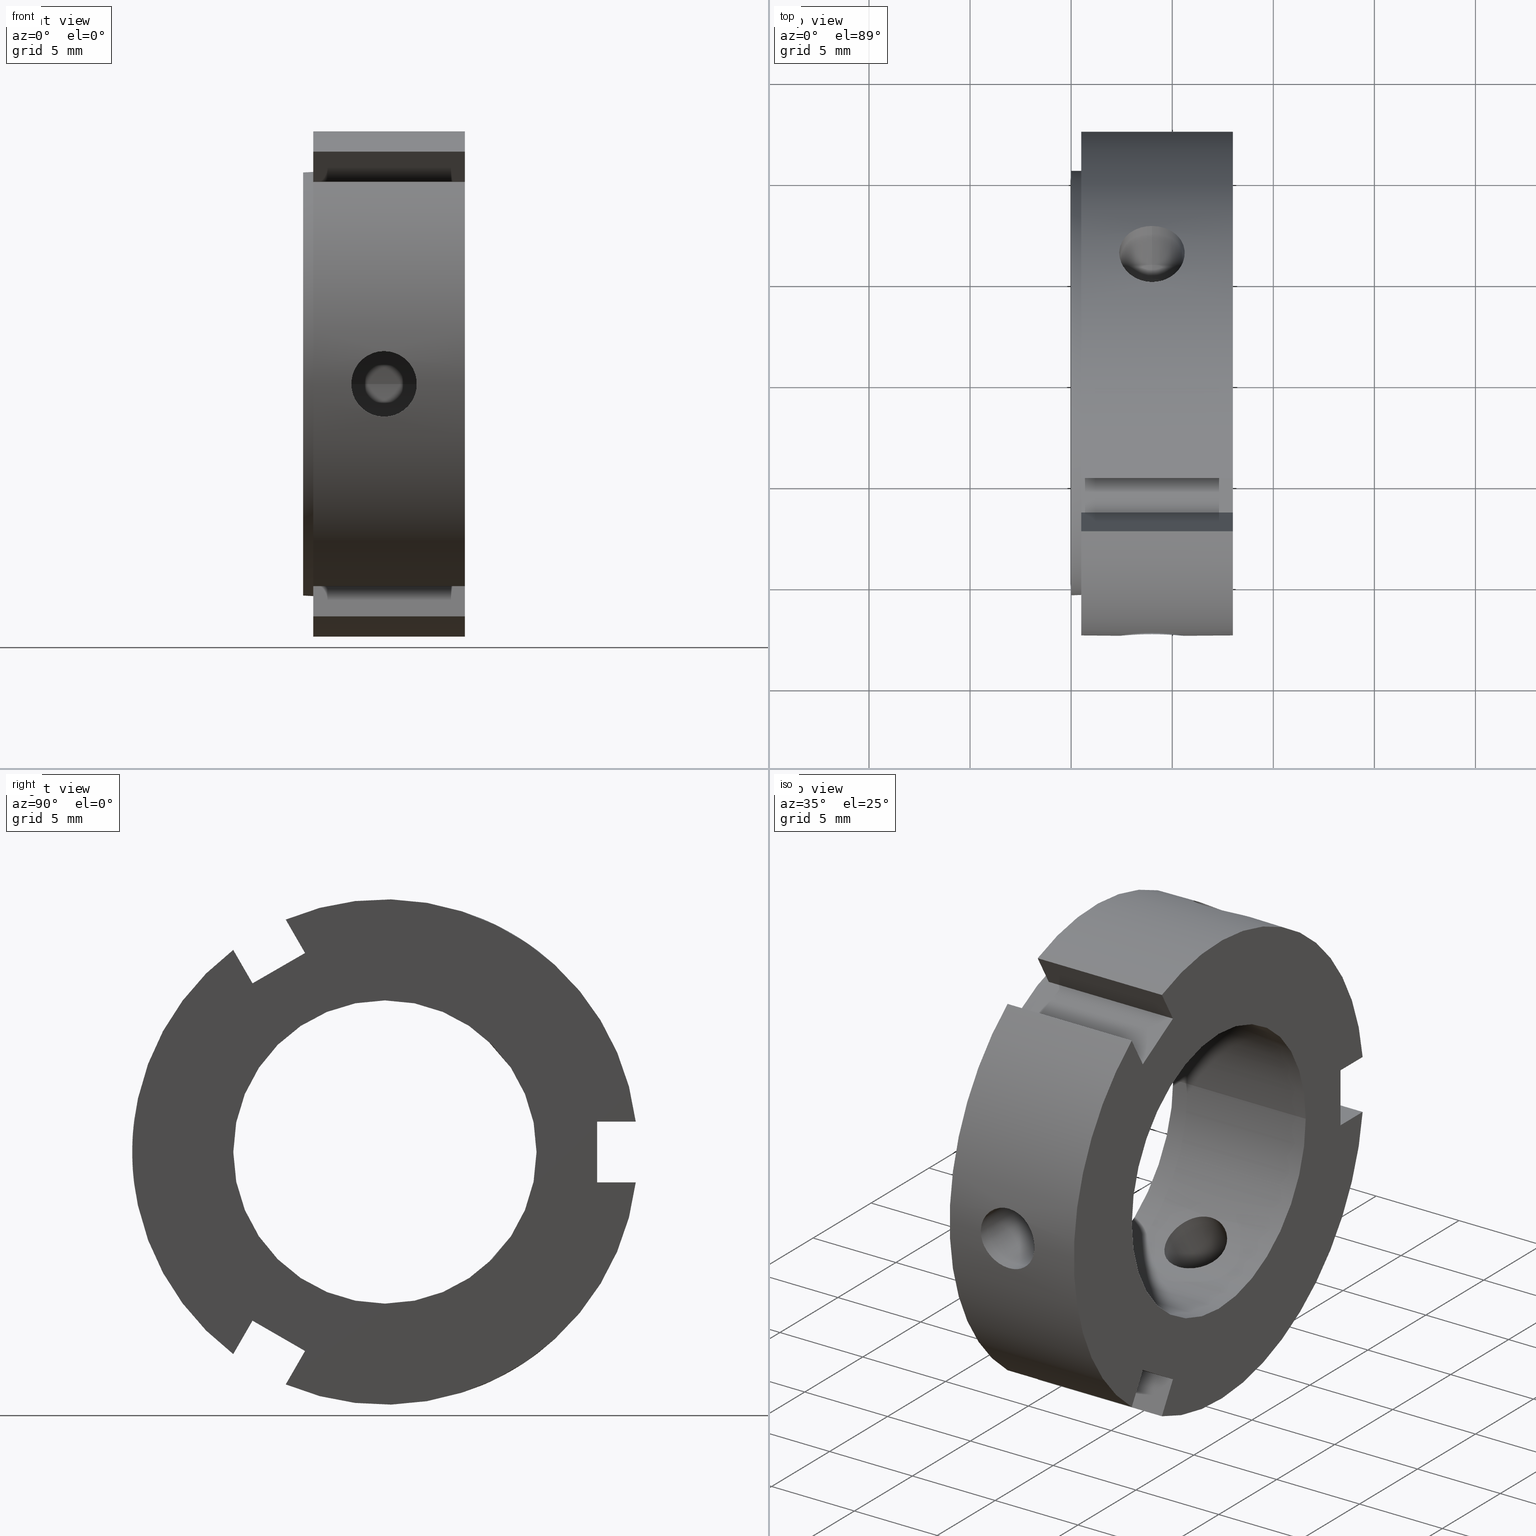
[diagram: canonical four-view strip — front | top / right | iso, engineering-drawing reading convention]
A machine part, canonical four-view strip (front | top / right | iso — engineering-drawing reading convention). The complete STEP part file that produces these views, byte-faithful:
ISO-10303-21;
HEADER;
/****************************************************************
 * Generated by software with PDE/Lib inside                    *
 * PDElib Version v51a, created Thu 01/14/2010                  *
 * ITI Transcendata (http://www.transcendata.com/)              *
 ****************************************************************/
FILE_DESCRIPTION((''),'2;1');
FILE_NAME('\\\\CAD-SVN\\cad-svn\\\X2\628088538AB2\X0\\\FKD\X2\88FD4F5C\X0\SP\\\X2\90E854C130E930A430D630E930EA\X0\\\HP \X2\30A230C330D730C730FC30C87528\X0\CAD\X2\30C730FC30BFFF0867007D42FF09\X0\\\3D data\\ZMT\\FKD ZMT 15.stp','2014-07-16T14:43:16',('fkd-ct1n'),(''),'Autodesk Inventor 2011','Autodesk Inventor 2011','');
FILE_SCHEMA(('AUTOMOTIVE_DESIGN { 1 0 10303 214 1 1 1 1 }'));
ENDSEC;
DATA;
#5=APPLICATION_CONTEXT('automotive design');
#6=APPLICATION_PROTOCOL_DEFINITION('International Standard','automotive_design',2001,#5);
#7=PRODUCT_CONTEXT('',#5,'mechanical');
#8=PRODUCT('FKD ZMT 15','FKD ZMT 15',$,(#7));
#9=PRODUCT_RELATED_PRODUCT_CATEGORY('part',$,(#8));
#10=PRODUCT_DEFINITION_FORMATION('',$,#8);
#11=PRODUCT_DEFINITION_CONTEXT('part definition',#5,'design');
#12=PRODUCT_DEFINITION('',$,#10,#11);
#18=(NAMED_UNIT(*)PLANE_ANGLE_UNIT()SI_UNIT($,.RADIAN.));
#19=DIMENSIONAL_EXPONENTS(0.0,0.0,0.0,0.0,0.0,0.0,0.0);
#20=PLANE_ANGLE_MEASURE_WITH_UNIT(PLANE_ANGLE_MEASURE(0.017453292500000),#18);
#24=(CONVERSION_BASED_UNIT('DEGREE',#20)NAMED_UNIT(#19)PLANE_ANGLE_UNIT());
#28=(NAMED_UNIT(*)SI_UNIT($,.STERADIAN.)SOLID_ANGLE_UNIT());
#32=(LENGTH_UNIT()NAMED_UNIT(*)SI_UNIT(.MILLI.,.METRE.));
#34=UNCERTAINTY_MEASURE_WITH_UNIT(LENGTH_MEASURE(0.010000000000000),#32,'DISTANCE_ACCURACY_VALUE','');
#36=(GEOMETRIC_REPRESENTATION_CONTEXT(3)GLOBAL_UNCERTAINTY_ASSIGNED_CONTEXT((#34))GLOBAL_UNIT_ASSIGNED_CONTEXT((#24,#28,#32))REPRESENTATION_CONTEXT('None','None'));
#37=AXIS2_PLACEMENT_3D('',#38,#39,#40);
#38=CARTESIAN_POINT('',(0.0,0.0,0.0));
#39=DIRECTION('',(0.0,0.0,1.0));
#40=DIRECTION('',(1.0,0.0,0.0));
#41=SHAPE_REPRESENTATION('',(#37),#36);
#42=PRODUCT_DEFINITION_SHAPE('','',#12);
#43=SHAPE_DEFINITION_REPRESENTATION(#42,#41);
#49=(NAMED_UNIT(*)PLANE_ANGLE_UNIT()SI_UNIT($,.RADIAN.));
#50=DIMENSIONAL_EXPONENTS(0.0,0.0,0.0,0.0,0.0,0.0,0.0);
#51=PLANE_ANGLE_MEASURE_WITH_UNIT(PLANE_ANGLE_MEASURE(0.017453292500000),#49);
#55=(CONVERSION_BASED_UNIT('DEGREE',#51)NAMED_UNIT(#50)PLANE_ANGLE_UNIT());
#59=(NAMED_UNIT(*)SI_UNIT($,.STERADIAN.)SOLID_ANGLE_UNIT());
#63=(LENGTH_UNIT()NAMED_UNIT(*)SI_UNIT(.MILLI.,.METRE.));
#65=UNCERTAINTY_MEASURE_WITH_UNIT(LENGTH_MEASURE(0.000001000000000),#63,'DISTANCE_ACCURACY_VALUE','');
#67=(GEOMETRIC_REPRESENTATION_CONTEXT(3)GLOBAL_UNCERTAINTY_ASSIGNED_CONTEXT((#65))GLOBAL_UNIT_ASSIGNED_CONTEXT((#55,#59,#63))REPRESENTATION_CONTEXT('','3D'));
#68=CARTESIAN_POINT('',(7.999999999999996,-6.549038105676662,-8.343266739736601));
#69=DIRECTION('',(0.0,-0.866025403784438,0.500000000000000));
#70=DIRECTION('',(-1.0,0.0,0.0));
#71=AXIS2_PLACEMENT_3D('',#68,#69,#70);
#72=PLANE('',#71);
#73=CARTESIAN_POINT('',(0.499999999999998,-6.549038105676662,-8.343266739736601));
#74=VERTEX_POINT('',#73);
#75=CARTESIAN_POINT('',(0.499999999999998,-7.503874928672091,-9.997092630102335));
#76=VERTEX_POINT('',#75);
#77=CARTESIAN_POINT('',(0.499999999999998,-6.549038105676662,-8.343266739736601));
#78=DIRECTION('',(0.0,-0.500000000000000,-0.866025403784438));
#79=VECTOR('',#78,1.909673645990859);
#80=LINE('',#77,#79);
#81=EDGE_CURVE('',#74,#76,#80,.T.);
#82=ORIENTED_EDGE('',*,*,#81,.F.);
#83=CARTESIAN_POINT('',(7.999999999999996,-6.549038105676662,-8.343266739736601));
#84=VERTEX_POINT('',#83);
#85=CARTESIAN_POINT('',(7.999999999999996,-6.549038105676662,-8.343266739736601));
#86=DIRECTION('',(-1.0,0.0,0.0));
#87=VECTOR('',#86,7.499999999999998);
#88=LINE('',#85,#87);
#89=EDGE_CURVE('',#84,#74,#88,.T.);
#90=ORIENTED_EDGE('',*,*,#89,.F.);
#91=CARTESIAN_POINT('',(7.999999999999996,-7.503874928672091,-9.997092630102335));
#92=VERTEX_POINT('',#91);
#93=CARTESIAN_POINT('',(7.999999999999996,-7.503874928672092,-9.997092630102335));
#94=DIRECTION('',(0.0,0.500000000000000,0.866025403784438));
#95=VECTOR('',#94,1.909673645990857);
#96=LINE('',#93,#95);
#97=EDGE_CURVE('',#92,#84,#96,.T.);
#98=ORIENTED_EDGE('',*,*,#97,.F.);
#99=CARTESIAN_POINT('',(0.499999999999998,-7.503874928672092,-9.997092630102333));
#100=DIRECTION('',(1.0,0.0,0.0));
#101=VECTOR('',#100,7.499999999999998);
#102=LINE('',#99,#101);
#103=EDGE_CURVE('',#76,#92,#102,.T.);
#104=ORIENTED_EDGE('',*,*,#103,.F.);
#105=EDGE_LOOP('',(#82,#90,#98,#104));
#106=FACE_OUTER_BOUND('',#105,.T.);
#107=ADVANCED_FACE('',(#106),#72,.F.);
#108=CARTESIAN_POINT('',(7.999999999999996,-4.950961894323348,-11.575317547305479));
#109=DIRECTION('',(0.0,0.866025403784438,-0.500000000000001));
#110=DIRECTION('',(1.0,0.0,0.0));
#111=AXIS2_PLACEMENT_3D('',#108,#109,#110);
#112=PLANE('',#111);
#113=CARTESIAN_POINT('',(0.499999999999998,-4.905798717318776,-11.497092630102337));
#114=VERTEX_POINT('',#113);
#115=CARTESIAN_POINT('',(0.499999999999998,-3.950961894323346,-9.843266739736604));
#116=VERTEX_POINT('',#115);
#117=CARTESIAN_POINT('',(0.499999999999998,-4.905798717318779,-11.497092630102337));
#118=DIRECTION('',(0.0,0.500000000000001,0.866025403784438));
#119=VECTOR('',#118,1.909673645990857);
#120=LINE('',#117,#119);
#121=EDGE_CURVE('',#114,#116,#120,.T.);
#122=ORIENTED_EDGE('',*,*,#121,.F.);
#123=CARTESIAN_POINT('',(7.999999999999996,-4.905798717318776,-11.497092630102337));
#124=VERTEX_POINT('',#123);
#125=CARTESIAN_POINT('',(7.999999999999996,-4.905798717318776,-11.497092630102333));
#126=DIRECTION('',(-1.0,0.0,0.0));
#127=VECTOR('',#126,7.499999999999998);
#128=LINE('',#125,#127);
#129=EDGE_CURVE('',#124,#114,#128,.T.);
#130=ORIENTED_EDGE('',*,*,#129,.F.);
#131=CARTESIAN_POINT('',(7.999999999999996,-3.950961894323346,-9.843266739736604));
#132=VERTEX_POINT('',#131);
#133=CARTESIAN_POINT('',(7.999999999999996,-3.950961894323350,-9.843266739736604));
#134=DIRECTION('',(0.0,-0.500000000000001,-0.866025403784438));
#135=VECTOR('',#134,1.909673645990857);
#136=LINE('',#133,#135);
#137=EDGE_CURVE('',#132,#124,#136,.T.);
#138=ORIENTED_EDGE('',*,*,#137,.F.);
#139=CARTESIAN_POINT('',(7.999999999999996,-3.950961894323346,-9.843266739736604));
#140=DIRECTION('',(-1.0,0.0,0.0));
#141=VECTOR('',#140,7.499999999999998);
#142=LINE('',#139,#141);
#143=EDGE_CURVE('',#132,#116,#142,.T.);
#144=ORIENTED_EDGE('',*,*,#143,.T.);
#145=EDGE_LOOP('',(#122,#130,#138,#144));
#146=FACE_OUTER_BOUND('',#145,.T.);
#147=ADVANCED_FACE('',(#146),#112,.F.);
#148=CARTESIAN_POINT('',(7.999999999999996,-3.950961894323346,-9.843266739736604));
#149=DIRECTION('',(0.0,0.500000000000001,0.866025403784438));
#150=DIRECTION('',(0.0,-0.866025403784438,0.500000000000000));
#151=AXIS2_PLACEMENT_3D('',#148,#149,#150);
#152=PLANE('',#151);
#153=CARTESIAN_POINT('',(0.499999999999998,-5.250000000000004,-9.093266739736603));
#154=VERTEX_POINT('',#153);
#155=CARTESIAN_POINT('',(0.499999999999998,-3.950961894323348,-9.843266739736604));
#156=DIRECTION('',(0.0,-0.866025403784438,0.500000000000000));
#157=VECTOR('',#156,1.500000000000002);
#158=LINE('',#155,#157);
#159=EDGE_CURVE('',#116,#154,#158,.T.);
#160=ORIENTED_EDGE('',*,*,#159,.F.);
#161=ORIENTED_EDGE('',*,*,#143,.F.);
#162=CARTESIAN_POINT('',(7.999999999999996,-6.549038105676665,-8.343266739736606));
#163=DIRECTION('',(0.0,0.866025403784438,-0.500000000000001));
#164=VECTOR('',#163,3.000000000000000);
#165=LINE('',#162,#164);
#166=EDGE_CURVE('',#84,#132,#165,.T.);
#167=ORIENTED_EDGE('',*,*,#166,.F.);
#168=ORIENTED_EDGE('',*,*,#89,.T.);
#169=CARTESIAN_POINT('',(0.499999999999998,-5.250000000000008,-9.093266739736603));
#170=DIRECTION('',(0.0,-0.866025403784438,0.500000000000000));
#171=VECTOR('',#170,1.499999999999999);
#172=LINE('',#169,#171);
#173=EDGE_CURVE('',#154,#74,#172,.T.);
#174=ORIENTED_EDGE('',*,*,#173,.F.);
#175=EDGE_LOOP('',(#160,#161,#167,#168,#174));
#176=FACE_OUTER_BOUND('',#175,.T.);
#177=ADVANCED_FACE('',(#176),#152,.F.);
#178=CARTESIAN_POINT('',(3.999999999999996,18.093450756763993,31.338775994960749));
#179=DIRECTION('',(0.0,-0.500000000000001,-0.866025403784438));
#180=DIRECTION('',(-1.0,0.0,0.0));
#181=AXIS2_PLACEMENT_3D('',#178,#179,#180);
#182=CYLINDRICAL_SURFACE('',#181,1.621000000000000);
#183=CARTESIAN_POINT('',(3.999999999999996,7.601051538068004,9.923407454883328));
#184=VERTEX_POINT('',#183);
#185=CARTESIAN_POINT('',(3.999999999999996,7.601051538068000,9.923407454883328));
#186=CARTESIAN_POINT('',(4.203783961701885,7.601051538068000,9.923407454883328));
#187=CARTESIAN_POINT('',(4.420992470797520,7.568513040459264,9.948595762281155));
#188=CARTESIAN_POINT('',(4.820304367155234,7.435171112033019,10.048640593081853));
#189=CARTESIAN_POINT('',(5.002427579897869,7.334231199488334,10.123235862552784));
#190=CARTESIAN_POINT('',(5.290011211629800,7.098417620478204,10.289962026056438));
#191=CARTESIAN_POINT('',(5.414726466705027,6.947733475419265,10.393217065929544));
#192=CARTESIAN_POINT('',(5.580227178760654,6.611843034010328,10.610065650944144));
#193=CARTESIAN_POINT('',(5.620999999999996,6.426480377938040,10.723426553596266));
#194=CARTESIAN_POINT('',(5.620999999999996,6.073519622061969,10.927208541014689));
#195=CARTESIAN_POINT('',(5.580227178760655,5.882664872533151,11.031056858760188));
#196=CARTESIAN_POINT('',(5.414726466705030,5.526923268431331,11.213522221401400));
#197=CARTESIAN_POINT('',(5.290011211629801,5.362159708302979,11.292390999033426));
#198=CARTESIAN_POINT('',(5.002427579897870,5.099863825728232,11.413248467261703));
#199=CARTESIAN_POINT('',(4.820304367155239,4.984792471091909,11.463367361045711));
#200=CARTESIAN_POINT('',(4.420992470797525,4.831480141888066,11.528822443052096));
#201=CARTESIAN_POINT('',(4.203783961701885,4.793397178998850,11.544407454883331));
#202=CARTESIAN_POINT('',(3.796216038298107,4.793397178998850,11.544407454883331));
#203=CARTESIAN_POINT('',(3.579007529202468,4.831480141888066,11.528822443052096));
#204=CARTESIAN_POINT('',(3.179695632844753,4.984792471091910,11.463367361045711));
#205=CARTESIAN_POINT('',(2.997572420102120,5.099863825728232,11.413248467261703));
#206=CARTESIAN_POINT('',(2.709988788370191,5.362159708302979,11.292390999033426));
#207=CARTESIAN_POINT('',(2.585273533294961,5.526923268431332,11.213522221401398));
#208=CARTESIAN_POINT('',(2.419772821239337,5.882664872533152,11.031056858760186));
#209=CARTESIAN_POINT('',(2.378999999999995,6.073519622061969,10.927208541014689));
#210=CARTESIAN_POINT('',(2.378999999999996,6.426480377938040,10.723426553596266));
#211=CARTESIAN_POINT('',(2.419772821239338,6.611843034010328,10.610065650944140));
#212=CARTESIAN_POINT('',(2.585273533294965,6.947733475419265,10.393217065929543));
#213=CARTESIAN_POINT('',(2.709988788370192,7.098417620478204,10.289962026056438));
#214=CARTESIAN_POINT('',(2.997572420102123,7.334231199488334,10.123235862552784));
#215=CARTESIAN_POINT('',(3.179695632844758,7.435171112033019,10.048640593081853));
#216=CARTESIAN_POINT('',(3.579007529202471,7.568513040459264,9.948595762281155));
#217=CARTESIAN_POINT('',(3.796216038298108,7.601051538068000,9.923407454883328));
#218=CARTESIAN_POINT('',(3.999999999999996,7.601051538068000,9.923407454883328));
#219=B_SPLINE_CURVE_WITH_KNOTS('',3,(#185,#186,#187,#188,#189,#190,#191,#192,#193,#194,#195,#196,#197,#198,#199,#200,#201,#202,#203,#204,#205,#206,#207,#208,#209,#210,#211,#212,#213,#214,#215,#216,#217,#218),.UNSPECIFIED.,.T.,.U.,(4,2,2,2,2,2,2,2,2,2,2,2,2,2,2,2,4),(0.0,0.061135188510567,0.122270377021133,0.183404973246660,0.244539569472187,0.305674165697714,0.366808761923241,0.427943950433808,0.489079138944374,0.550214327454941,0.611349515965508,0.672484112191035,0.733618708416562,0.794753304642089,0.855887900867616,0.917023089378182,0.978158277888749),.UNSPECIFIED.);
#220=EDGE_CURVE('',#184,#184,#219,.T.);
#221=ORIENTED_EDGE('',*,*,#220,.F.);
#222=EDGE_LOOP('',(#221));
#223=FACE_OUTER_BOUND('',#222,.T.);
#224=CARTESIAN_POINT('',(3.999999999999996,5.065191645140263,5.531169279456314));
#225=VERTEX_POINT('',#224);
#226=CARTESIAN_POINT('',(3.999999999999996,5.065191645140262,5.531169279456316));
#227=CARTESIAN_POINT('',(3.795760596327584,5.065191645140262,5.531169279456316));
#228=CARTESIAN_POINT('',(3.578365321611677,5.034444204255705,5.559812424690974));
#229=CARTESIAN_POINT('',(3.179185575143308,4.907880269326058,5.671847473205590));
#230=CARTESIAN_POINT('',(2.997343182592460,4.811831646202085,5.754770154291286));
#231=CARTESIAN_POINT('',(2.710227675489291,4.585382960650870,5.936780539815729));
#232=CARTESIAN_POINT('',(2.585577148557246,4.439670778336843,6.048093746718918));
#233=CARTESIAN_POINT('',(2.419945764088577,4.110546511015053,6.276425891176426));
#234=CARTESIAN_POINT('',(2.378999999999996,3.926862906937423,6.393078681453308));
#235=CARTESIAN_POINT('',(2.378999999999996,3.573137093062583,6.597302375313268));
#236=CARTESIAN_POINT('',(2.419945764088576,3.380271011221649,6.698050647564736));
#237=CARTESIAN_POINT('',(2.585577148557244,3.017967439959973,6.868914551838593));
#238=CARTESIAN_POINT('',(2.710227675489293,2.848711283848089,6.939448399911818));
#239=CARTESIAN_POINT('',(2.997343182592461,2.577861323455713,7.044553521490543));
#240=CARTESIAN_POINT('',(3.179185575143306,2.458023863523594,7.086272728571573));
#241=CARTESIAN_POINT('',(3.578365321611677,2.297716697930890,7.139862787166261));
#242=CARTESIAN_POINT('',(3.795760596327583,2.257537286071107,7.152169279456317));
#243=CARTESIAN_POINT('',(4.204239403672409,2.257537286071107,7.152169279456317));
#244=CARTESIAN_POINT('',(4.421634678388315,2.297716697930890,7.139862787166261));
#245=CARTESIAN_POINT('',(4.820814424856684,2.458023863523593,7.086272728571573));
#246=CARTESIAN_POINT('',(5.002656817407530,2.577861323455712,7.044553521490543));
#247=CARTESIAN_POINT('',(5.289772324510699,2.848711283848088,6.939448399911818));
#248=CARTESIAN_POINT('',(5.414422851442748,3.017967439959973,6.868914551838593));
#249=CARTESIAN_POINT('',(5.580054235911415,3.380271011221649,6.698050647564735));
#250=CARTESIAN_POINT('',(5.620999999999996,3.573137093062583,6.597302375313268));
#251=CARTESIAN_POINT('',(5.620999999999996,3.926862906937423,6.393078681453308));
#252=CARTESIAN_POINT('',(5.580054235911415,4.110546511015053,6.276425891176425));
#253=CARTESIAN_POINT('',(5.414422851442745,4.439670778336843,6.048093746718917));
#254=CARTESIAN_POINT('',(5.289772324510700,4.585382960650870,5.936780539815729));
#255=CARTESIAN_POINT('',(5.002656817407532,4.811831646202085,5.754770154291286));
#256=CARTESIAN_POINT('',(4.820814424856684,4.907880269326058,5.671847473205590));
#257=CARTESIAN_POINT('',(4.421634678388314,5.034444204255705,5.559812424690974));
#258=CARTESIAN_POINT('',(4.204239403672407,5.065191645140262,5.531169279456315));
#259=CARTESIAN_POINT('',(3.999999999999996,5.065191645140262,5.531169279456315));
#260=B_SPLINE_CURVE_WITH_KNOTS('',3,(#226,#227,#228,#229,#230,#231,#232,#233,#234,#235,#236,#237,#238,#239,#240,#241,#242,#243,#244,#245,#246,#247,#248,#249,#250,#251,#252,#253,#254,#255,#256,#257,#258,#259),.UNSPECIFIED.,.T.,.U.,(4,2,2,2,2,2,2,2,2,2,2,2,2,2,2,2,4),(0.0,0.061271821101724,0.122543642203447,0.183810750361435,0.245077858519422,0.306344966677410,0.367612074835397,0.428883895937121,0.490155717038845,0.551427538140569,0.612699359242293,0.673966467400280,0.735233575558268,0.796500683716255,0.857767791874243,0.919039612975966,0.980311434077690),.UNSPECIFIED.);
#261=EDGE_CURVE('',#225,#225,#260,.T.);
#262=ORIENTED_EDGE('',*,*,#261,.F.);
#263=EDGE_LOOP('',(#262));
#264=FACE_BOUND('',#263,.T.);
#265=ADVANCED_FACE('',(#223,#264),#182,.F.);
#266=CARTESIAN_POINT('',(7.999999999999996,-3.950961894323338,9.843266739736606));
#267=DIRECTION('',(0.0,0.866025403784439,0.500000000000000));
#268=DIRECTION('',(-1.0,0.0,0.0));
#269=AXIS2_PLACEMENT_3D('',#266,#267,#268);
#270=PLANE('',#269);
#271=CARTESIAN_POINT('',(0.499999999999998,-3.950961894323338,9.843266739736606));
#272=VERTEX_POINT('',#271);
#273=CARTESIAN_POINT('',(0.499999999999998,-4.905798717318767,11.497092630102339));
#274=VERTEX_POINT('',#273);
#275=CARTESIAN_POINT('',(0.499999999999998,-3.950961894323338,9.843266739736606));
#276=DIRECTION('',(0.0,-0.500000000000001,0.866025403784438));
#277=VECTOR('',#276,1.909673645990855);
#278=LINE('',#275,#277);
#279=EDGE_CURVE('',#272,#274,#278,.T.);
#280=ORIENTED_EDGE('',*,*,#279,.F.);
#281=CARTESIAN_POINT('',(7.999999999999996,-3.950961894323338,9.843266739736606));
#282=VERTEX_POINT('',#281);
#283=CARTESIAN_POINT('',(7.999999999999996,-3.950961894323338,9.843266739736606));
#284=DIRECTION('',(-1.0,0.0,0.0));
#285=VECTOR('',#284,7.499999999999998);
#286=LINE('',#283,#285);
#287=EDGE_CURVE('',#282,#272,#286,.T.);
#288=ORIENTED_EDGE('',*,*,#287,.F.);
#289=CARTESIAN_POINT('',(7.999999999999996,-4.905798717318767,11.497092630102339));
#290=VERTEX_POINT('',#289);
#291=CARTESIAN_POINT('',(7.999999999999996,-4.905798717318767,11.497092630102340));
#292=DIRECTION('',(0.0,0.500000000000000,-0.866025403784439));
#293=VECTOR('',#292,1.909673645990858);
#294=LINE('',#291,#293);
#295=EDGE_CURVE('',#290,#282,#294,.T.);
#296=ORIENTED_EDGE('',*,*,#295,.F.);
#297=CARTESIAN_POINT('',(0.499999999999998,-4.905798717318767,11.497092630102337));
#298=DIRECTION('',(1.0,0.0,0.0));
#299=VECTOR('',#298,7.499999999999998);
#300=LINE('',#297,#299);
#301=EDGE_CURVE('',#274,#290,#300,.T.);
#302=ORIENTED_EDGE('',*,*,#301,.F.);
#303=EDGE_LOOP('',(#280,#288,#296,#302));
#304=FACE_OUTER_BOUND('',#303,.T.);
#305=ADVANCED_FACE('',(#304),#270,.F.);
#306=CARTESIAN_POINT('',(7.999999999999996,-7.549038105676655,10.075317547305485));
#307=DIRECTION('',(0.0,-0.866025403784439,-0.500000000000000));
#308=DIRECTION('',(1.0,0.0,0.0));
#309=AXIS2_PLACEMENT_3D('',#306,#307,#308);
#310=PLANE('',#309);
#311=CARTESIAN_POINT('',(0.499999999999998,-7.503874928672083,9.997092630102340));
#312=VERTEX_POINT('',#311);
#313=CARTESIAN_POINT('',(0.499999999999998,-6.549038105676655,8.343266739736606));
#314=VERTEX_POINT('',#313);
#315=CARTESIAN_POINT('',(0.499999999999998,-7.503874928672087,9.997092630102340));
#316=DIRECTION('',(0.0,0.500000000000000,-0.866025403784439));
#317=VECTOR('',#316,1.909673645990858);
#318=LINE('',#315,#317);
#319=EDGE_CURVE('',#312,#314,#318,.T.);
#320=ORIENTED_EDGE('',*,*,#319,.F.);
#321=CARTESIAN_POINT('',(7.999999999999996,-7.503874928672083,9.997092630102340));
#322=VERTEX_POINT('',#321);
#323=CARTESIAN_POINT('',(7.999999999999996,-7.503874928672083,9.997092630102340));
#324=DIRECTION('',(-1.0,0.0,0.0));
#325=VECTOR('',#324,7.499999999999998);
#326=LINE('',#323,#325);
#327=EDGE_CURVE('',#322,#312,#326,.T.);
#328=ORIENTED_EDGE('',*,*,#327,.F.);
#329=CARTESIAN_POINT('',(7.999999999999996,-6.549038105676655,8.343266739736606));
#330=VERTEX_POINT('',#329);
#331=CARTESIAN_POINT('',(7.999999999999996,-6.549038105676658,8.343266739736606));
#332=DIRECTION('',(0.0,-0.499999999999999,0.866025403784439));
#333=VECTOR('',#332,1.909673645990858);
#334=LINE('',#331,#333);
#335=EDGE_CURVE('',#330,#322,#334,.T.);
#336=ORIENTED_EDGE('',*,*,#335,.F.);
#337=CARTESIAN_POINT('',(7.999999999999996,-6.549038105676655,8.343266739736606));
#338=DIRECTION('',(-1.0,0.0,0.0));
#339=VECTOR('',#338,7.499999999999998);
#340=LINE('',#337,#339);
#341=EDGE_CURVE('',#330,#314,#340,.T.);
#342=ORIENTED_EDGE('',*,*,#341,.T.);
#343=EDGE_LOOP('',(#320,#328,#336,#342));
#344=FACE_OUTER_BOUND('',#343,.T.);
#345=ADVANCED_FACE('',(#344),#310,.F.);
#346=CARTESIAN_POINT('',(7.999999999999996,-6.549038105676655,8.343266739736606));
#347=DIRECTION('',(0.0,0.500000000000000,-0.866025403784439));
#348=DIRECTION('',(0.0,0.866025403784439,0.500000000000000));
#349=AXIS2_PLACEMENT_3D('',#346,#347,#348);
#350=PLANE('',#349);
#351=CARTESIAN_POINT('',(0.499999999999998,-5.249999999999996,9.093266739736608));
#352=VERTEX_POINT('',#351);
#353=CARTESIAN_POINT('',(0.499999999999999,-6.549038105676658,8.343266739736608));
#354=DIRECTION('',(0.0,0.866025403784439,0.499999999999999));
#355=VECTOR('',#354,1.500000000000002);
#356=LINE('',#353,#355);
#357=EDGE_CURVE('',#314,#352,#356,.T.);
#358=ORIENTED_EDGE('',*,*,#357,.F.);
#359=ORIENTED_EDGE('',*,*,#341,.F.);
#360=CARTESIAN_POINT('',(7.999999999999996,-3.950961894323339,9.843266739736606));
#361=DIRECTION('',(0.0,-0.866025403784439,-0.500000000000000));
#362=VECTOR('',#361,3.000000000000001);
#363=LINE('',#360,#362);
#364=EDGE_CURVE('',#282,#330,#363,.T.);
#365=ORIENTED_EDGE('',*,*,#364,.F.);
#366=ORIENTED_EDGE('',*,*,#287,.T.);
#367=CARTESIAN_POINT('',(0.499999999999999,-5.249999999999997,9.093266739736608));
#368=DIRECTION('',(0.0,0.866025403784439,0.500000000000000));
#369=VECTOR('',#368,1.500000000000000);
#370=LINE('',#367,#369);
#371=EDGE_CURVE('',#352,#272,#370,.T.);
#372=ORIENTED_EDGE('',*,*,#371,.F.);
#373=EDGE_LOOP('',(#358,#359,#365,#366,#372));
#374=FACE_OUTER_BOUND('',#373,.T.);
#375=ADVANCED_FACE('',(#374),#350,.F.);
#376=CARTESIAN_POINT('',(3.999999999999996,18.093450756763968,-31.338775994960759));
#377=DIRECTION('',(0.0,-0.500000000000000,0.866025403784439));
#378=DIRECTION('',(-1.0,0.0,0.0));
#379=AXIS2_PLACEMENT_3D('',#376,#377,#378);
#380=CYLINDRICAL_SURFACE('',#379,1.621000000000000);
#381=CARTESIAN_POINT('',(3.999999999999996,4.793397178998844,-11.544407454883334));
#382=VERTEX_POINT('',#381);
#383=CARTESIAN_POINT('',(3.999999999999996,4.793397178998845,-11.544407454883332));
#384=CARTESIAN_POINT('',(4.203783961701885,4.793397178998845,-11.544407454883332));
#385=CARTESIAN_POINT('',(4.420992470797525,4.831480141888060,-11.528822443052100));
#386=CARTESIAN_POINT('',(4.820304367155240,4.984792471091906,-11.463367361045716));
#387=CARTESIAN_POINT('',(5.002427579897870,5.099863825728226,-11.413248467261703));
#388=CARTESIAN_POINT('',(5.290011211629800,5.362159708302974,-11.292390999033426));
#389=CARTESIAN_POINT('',(5.414726466705028,5.526923268431324,-11.213522221401401));
#390=CARTESIAN_POINT('',(5.580227178760655,5.882664872533145,-11.031056858760191));
#391=CARTESIAN_POINT('',(5.620999999999996,6.073519622061962,-10.927208541014695));
#392=CARTESIAN_POINT('',(5.620999999999996,6.426480377938033,-10.723426553596269));
#393=CARTESIAN_POINT('',(5.580227178760656,6.611843034010323,-10.610065650944147));
#394=CARTESIAN_POINT('',(5.414726466705030,6.947733475419257,-10.393217065929550));
#395=CARTESIAN_POINT('',(5.290011211629800,7.098417620478195,-10.289962026056447));
#396=CARTESIAN_POINT('',(5.002427579897870,7.334231199488327,-10.123235862552793));
#397=CARTESIAN_POINT('',(4.820304367155237,7.435171112033014,-10.048640593081856));
#398=CARTESIAN_POINT('',(4.420992470797524,7.568513040459258,-9.948595762281157));
#399=CARTESIAN_POINT('',(4.203783961701885,7.601051538067996,-9.923407454883332));
#400=CARTESIAN_POINT('',(3.796216038298108,7.601051538067996,-9.923407454883332));
#401=CARTESIAN_POINT('',(3.579007529202469,7.568513040459258,-9.948595762281157));
#402=CARTESIAN_POINT('',(3.179695632844756,7.435171112033014,-10.048640593081856));
#403=CARTESIAN_POINT('',(2.997572420102122,7.334231199488332,-10.123235862552793));
#404=CARTESIAN_POINT('',(2.709988788370191,7.098417620478202,-10.289962026056445));
#405=CARTESIAN_POINT('',(2.585273533294964,6.947733475419261,-10.393217065929550));
#406=CARTESIAN_POINT('',(2.419772821239337,6.611843034010323,-10.610065650944147));
#407=CARTESIAN_POINT('',(2.378999999999996,6.426480377938033,-10.723426553596269));
#408=CARTESIAN_POINT('',(2.378999999999995,6.073519622061962,-10.927208541014695));
#409=CARTESIAN_POINT('',(2.419772821239336,5.882664872533143,-11.031056858760193));
#410=CARTESIAN_POINT('',(2.585273533294961,5.526923268431325,-11.213522221401400));
#411=CARTESIAN_POINT('',(2.709988788370191,5.362159708302974,-11.292390999033426));
#412=CARTESIAN_POINT('',(2.997572420102121,5.099863825728226,-11.413248467261703));
#413=CARTESIAN_POINT('',(3.179695632844752,4.984792471091905,-11.463367361045716));
#414=CARTESIAN_POINT('',(3.579007529202467,4.831480141888060,-11.528822443052100));
#415=CARTESIAN_POINT('',(3.796216038298107,4.793397178998845,-11.544407454883332));
#416=CARTESIAN_POINT('',(3.999999999999996,4.793397178998845,-11.544407454883332));
#417=B_SPLINE_CURVE_WITH_KNOTS('',3,(#383,#384,#385,#386,#387,#388,#389,#390,#391,#392,#393,#394,#395,#396,#397,#398,#399,#400,#401,#402,#403,#404,#405,#406,#407,#408,#409,#410,#411,#412,#413,#414,#415,#416),.UNSPECIFIED.,.T.,.U.,(4,2,2,2,2,2,2,2,2,2,2,2,2,2,2,2,4),(0.0,0.061135188510567,0.122270377021133,0.183404973246660,0.244539569472187,0.305674165697714,0.366808761923241,0.427943950433807,0.489079138944374,0.550214327454940,0.611349515965507,0.672484112191034,0.733618708416561,0.794753304642088,0.855887900867615,0.917023089378181,0.978158277888748),.UNSPECIFIED.);
#418=EDGE_CURVE('',#382,#382,#417,.T.);
#419=ORIENTED_EDGE('',*,*,#418,.F.);
#420=EDGE_LOOP('',(#419));
#421=FACE_OUTER_BOUND('',#420,.T.);
#422=CARTESIAN_POINT('',(3.999999999999996,2.257537286071108,-7.152169279456317));
#423=VERTEX_POINT('',#422);
#424=CARTESIAN_POINT('',(3.999999999999996,2.257537286071107,-7.152169279456317));
#425=CARTESIAN_POINT('',(3.795760596327584,2.257537286071107,-7.152169279456317));
#426=CARTESIAN_POINT('',(3.578365321611675,2.297716697930886,-7.139862787166262));
#427=CARTESIAN_POINT('',(3.179185575143305,2.458023863523590,-7.086272728571574));
#428=CARTESIAN_POINT('',(2.997343182592460,2.577861323455709,-7.044553521490540));
#429=CARTESIAN_POINT('',(2.710227675489292,2.848711283848084,-6.939448399911814));
#430=CARTESIAN_POINT('',(2.585577148557245,3.017967439959970,-6.868914551838595));
#431=CARTESIAN_POINT('',(2.419945764088577,3.380271011221645,-6.698050647564737));
#432=CARTESIAN_POINT('',(2.378999999999996,3.573137093062578,-6.597302375313268));
#433=CARTESIAN_POINT('',(2.378999999999996,3.926862906937418,-6.393078681453311));
#434=CARTESIAN_POINT('',(2.419945764088578,4.110546511015047,-6.276425891176429));
#435=CARTESIAN_POINT('',(2.585577148557245,4.439670778336838,-6.048093746718921));
#436=CARTESIAN_POINT('',(2.710227675489292,4.585382960650863,-5.936780539815736));
#437=CARTESIAN_POINT('',(2.997343182592460,4.811831646202078,-5.754770154291292));
#438=CARTESIAN_POINT('',(3.179185575143305,4.907880269326054,-5.671847473205594));
#439=CARTESIAN_POINT('',(3.578365321611676,5.034444204255701,-5.559812424690978));
#440=CARTESIAN_POINT('',(3.795760596327583,5.065191645140258,-5.531169279456317));
#441=CARTESIAN_POINT('',(4.204239403672409,5.065191645140258,-5.531169279456317));
#442=CARTESIAN_POINT('',(4.421634678388315,5.034444204255703,-5.559812424690978));
#443=CARTESIAN_POINT('',(4.820814424856686,4.907880269326054,-5.671847473205594));
#444=CARTESIAN_POINT('',(5.002656817407532,4.811831646202078,-5.754770154291292));
#445=CARTESIAN_POINT('',(5.289772324510700,4.585382960650863,-5.936780539815736));
#446=CARTESIAN_POINT('',(5.414422851442748,4.439670778336837,-6.048093746718921));
#447=CARTESIAN_POINT('',(5.580054235911415,4.110546511015047,-6.276425891176429));
#448=CARTESIAN_POINT('',(5.620999999999996,3.926862906937418,-6.393078681453311));
#449=CARTESIAN_POINT('',(5.620999999999996,3.573137093062578,-6.597302375313268));
#450=CARTESIAN_POINT('',(5.580054235911415,3.380271011221645,-6.698050647564737));
#451=CARTESIAN_POINT('',(5.414422851442748,3.017967439959972,-6.868914551838595));
#452=CARTESIAN_POINT('',(5.289772324510700,2.848711283848084,-6.939448399911814));
#453=CARTESIAN_POINT('',(5.002656817407532,2.577861323455709,-7.044553521490540));
#454=CARTESIAN_POINT('',(4.820814424856687,2.458023863523590,-7.086272728571574));
#455=CARTESIAN_POINT('',(4.421634678388316,2.297716697930886,-7.139862787166262));
#456=CARTESIAN_POINT('',(4.204239403672409,2.257537286071107,-7.152169279456317));
#457=CARTESIAN_POINT('',(3.999999999999996,2.257537286071107,-7.152169279456317));
#458=B_SPLINE_CURVE_WITH_KNOTS('',3,(#424,#425,#426,#427,#428,#429,#430,#431,#432,#433,#434,#435,#436,#437,#438,#439,#440,#441,#442,#443,#444,#445,#446,#447,#448,#449,#450,#451,#452,#453,#454,#455,#456,#457),.UNSPECIFIED.,.T.,.U.,(4,2,2,2,2,2,2,2,2,2,2,2,2,2,2,2,4),(0.0,0.061271821101724,0.122543642203448,0.183810750361435,0.245077858519422,0.306344966677410,0.367612074835397,0.428883895937121,0.490155717038844,0.551427538140568,0.612699359242292,0.673966467400279,0.735233575558267,0.796500683716254,0.857767791874241,0.919039612975965,0.980311434077689),.UNSPECIFIED.);
#459=EDGE_CURVE('',#423,#423,#458,.T.);
#460=ORIENTED_EDGE('',*,*,#459,.F.);
#461=EDGE_LOOP('',(#460));
#462=FACE_BOUND('',#461,.T.);
#463=ADVANCED_FACE('',(#421,#462),#380,.F.);
#464=CARTESIAN_POINT('',(0.499999999999998,11.500000000000000,0.0));
#465=DIRECTION('',(-1.0,0.0,0.0));
#466=DIRECTION('',(0.0,0.0,1.0));
#467=AXIS2_PLACEMENT_3D('',#464,#465,#466);
#468=PLANE('',#467);
#469=ORIENTED_EDGE('',*,*,#371,.T.);
#470=ORIENTED_EDGE('',*,*,#279,.T.);
#471=CARTESIAN_POINT('',(0.499999999999998,12.409673645990855,1.500000000000000));
#472=VERTEX_POINT('',#471);
#473=CARTESIAN_POINT('',(0.499999999999998,0.0,0.0));
#474=DIRECTION('',(1.0,0.0,0.0));
#475=DIRECTION('',(0.0,1.0,0.0));
#476=AXIS2_PLACEMENT_3D('',#473,#474,#475);
#477=CIRCLE('',#476,12.499999999999998);
#478=EDGE_CURVE('',#472,#274,#477,.T.);
#479=ORIENTED_EDGE('',*,*,#478,.F.);
#480=CARTESIAN_POINT('',(0.499999999999998,10.499999999999998,1.500000000000000));
#481=VERTEX_POINT('',#480);
#482=CARTESIAN_POINT('',(0.499999999999998,12.409673645990853,1.500000000000000));
#483=DIRECTION('',(0.0,-1.0,0.0));
#484=VECTOR('',#483,1.909673645990857);
#485=LINE('',#482,#484);
#486=EDGE_CURVE('',#472,#481,#485,.T.);
#487=ORIENTED_EDGE('',*,*,#486,.T.);
#488=CARTESIAN_POINT('',(0.499999999999998,10.499999999999998,0.0));
#489=VERTEX_POINT('',#488);
#490=CARTESIAN_POINT('',(0.499999999999998,10.499999999999998,1.500000000000000));
#491=DIRECTION('',(0.0,0.0,-1.0));
#492=VECTOR('',#491,1.500000000000000);
#493=LINE('',#490,#492);
#494=EDGE_CURVE('',#481,#489,#493,.T.);
#495=ORIENTED_EDGE('',*,*,#494,.T.);
#496=CARTESIAN_POINT('',(0.499999999999998,0.0,0.0));
#497=DIRECTION('',(1.0,0.0,0.0));
#498=DIRECTION('',(0.0,1.0,0.0));
#499=AXIS2_PLACEMENT_3D('',#496,#497,#498);
#500=CIRCLE('',#499,10.499999999999998);
#501=EDGE_CURVE('',#489,#352,#500,.T.);
#502=ORIENTED_EDGE('',*,*,#501,.T.);
#503=EDGE_LOOP('',(#469,#470,#479,#487,#495,#502));
#504=FACE_OUTER_BOUND('',#503,.T.);
#505=ADVANCED_FACE('',(#504),#468,.T.);
#506=CARTESIAN_POINT('',(0.499999999999998,11.500000000000000,0.0));
#507=DIRECTION('',(-1.0,0.0,0.0));
#508=DIRECTION('',(0.0,0.0,1.0));
#509=AXIS2_PLACEMENT_3D('',#506,#507,#508);
#510=PLANE('',#509);
#511=ORIENTED_EDGE('',*,*,#173,.T.);
#512=ORIENTED_EDGE('',*,*,#81,.T.);
#513=CARTESIAN_POINT('',(0.499999999999998,0.0,0.0));
#514=DIRECTION('',(1.0,0.0,0.0));
#515=DIRECTION('',(0.0,1.0,0.0));
#516=AXIS2_PLACEMENT_3D('',#513,#514,#515);
#517=CIRCLE('',#516,12.499999999999998);
#518=EDGE_CURVE('',#312,#76,#517,.T.);
#519=ORIENTED_EDGE('',*,*,#518,.F.);
#520=ORIENTED_EDGE('',*,*,#319,.T.);
#521=ORIENTED_EDGE('',*,*,#357,.T.);
#522=CARTESIAN_POINT('',(0.499999999999998,0.0,0.0));
#523=DIRECTION('',(1.0,0.0,0.0));
#524=DIRECTION('',(0.0,1.0,0.0));
#525=AXIS2_PLACEMENT_3D('',#522,#523,#524);
#526=CIRCLE('',#525,10.499999999999998);
#527=EDGE_CURVE('',#352,#154,#526,.T.);
#528=ORIENTED_EDGE('',*,*,#527,.T.);
#529=EDGE_LOOP('',(#511,#512,#519,#520,#521,#528));
#530=FACE_OUTER_BOUND('',#529,.T.);
#531=ADVANCED_FACE('',(#530),#510,.T.);
#532=CARTESIAN_POINT('',(7.999999999999996,9.999999999999998,0.0));
#533=DIRECTION('',(1.0,0.0,0.0));
#534=DIRECTION('',(0.0,0.0,-1.0));
#535=AXIS2_PLACEMENT_3D('',#532,#533,#534);
#536=PLANE('',#535);
#537=ORIENTED_EDGE('',*,*,#97,.T.);
#538=ORIENTED_EDGE('',*,*,#166,.T.);
#539=ORIENTED_EDGE('',*,*,#137,.T.);
#540=CARTESIAN_POINT('',(7.999999999999996,12.409673645990855,-1.500000000000000));
#541=VERTEX_POINT('',#540);
#542=CARTESIAN_POINT('',(7.999999999999996,0.0,0.0));
#543=DIRECTION('',(1.0,0.0,0.0));
#544=DIRECTION('',(0.0,1.0,0.0));
#545=AXIS2_PLACEMENT_3D('',#542,#543,#544);
#546=CIRCLE('',#545,12.499999999999998);
#547=EDGE_CURVE('',#124,#541,#546,.T.);
#548=ORIENTED_EDGE('',*,*,#547,.T.);
#549=CARTESIAN_POINT('',(7.999999999999996,10.499999999999998,-1.500000000000000));
#550=VERTEX_POINT('',#549);
#551=CARTESIAN_POINT('',(7.999999999999996,12.409673645990857,-1.500000000000000));
#552=DIRECTION('',(0.0,-1.0,0.0));
#553=VECTOR('',#552,1.909673645990857);
#554=LINE('',#551,#553);
#555=EDGE_CURVE('',#541,#550,#554,.T.);
#556=ORIENTED_EDGE('',*,*,#555,.T.);
#557=CARTESIAN_POINT('',(7.999999999999996,10.499999999999998,1.500000000000000));
#558=VERTEX_POINT('',#557);
#559=CARTESIAN_POINT('',(7.999999999999996,10.499999999999998,-1.500000000000000));
#560=DIRECTION('',(0.0,0.0,1.0));
#561=VECTOR('',#560,3.000000000000001);
#562=LINE('',#559,#561);
#563=EDGE_CURVE('',#550,#558,#562,.T.);
#564=ORIENTED_EDGE('',*,*,#563,.T.);
#565=CARTESIAN_POINT('',(7.999999999999996,12.409673645990855,1.500000000000000));
#566=VERTEX_POINT('',#565);
#567=CARTESIAN_POINT('',(7.999999999999996,10.499999999999998,1.500000000000000));
#568=DIRECTION('',(0.0,1.0,0.0));
#569=VECTOR('',#568,1.909673645990857);
#570=LINE('',#567,#569);
#571=EDGE_CURVE('',#558,#566,#570,.T.);
#572=ORIENTED_EDGE('',*,*,#571,.T.);
#573=CARTESIAN_POINT('',(7.999999999999996,0.0,0.0));
#574=DIRECTION('',(1.0,0.0,0.0));
#575=DIRECTION('',(0.0,1.0,0.0));
#576=AXIS2_PLACEMENT_3D('',#573,#574,#575);
#577=CIRCLE('',#576,12.499999999999998);
#578=EDGE_CURVE('',#566,#290,#577,.T.);
#579=ORIENTED_EDGE('',*,*,#578,.T.);
#580=ORIENTED_EDGE('',*,*,#295,.T.);
#581=ORIENTED_EDGE('',*,*,#364,.T.);
#582=ORIENTED_EDGE('',*,*,#335,.T.);
#583=CARTESIAN_POINT('',(7.999999999999996,0.0,0.0));
#584=DIRECTION('',(1.0,0.0,0.0));
#585=DIRECTION('',(0.0,1.0,0.0));
#586=AXIS2_PLACEMENT_3D('',#583,#584,#585);
#587=CIRCLE('',#586,12.499999999999998);
#588=EDGE_CURVE('',#322,#92,#587,.T.);
#589=ORIENTED_EDGE('',*,*,#588,.T.);
#590=EDGE_LOOP('',(#537,#538,#539,#548,#556,#564,#572,#579,#580,#581,#582,#589));
#591=FACE_OUTER_BOUND('',#590,.T.);
#592=CARTESIAN_POINT('',(7.999999999999997,7.500000000000000,0.0));
#593=VERTEX_POINT('',#592);
#594=CARTESIAN_POINT('',(7.999999999999997,0.0,0.0));
#595=DIRECTION('',(1.0,0.0,0.0));
#596=DIRECTION('',(0.0,1.0,0.0));
#597=AXIS2_PLACEMENT_3D('',#594,#595,#596);
#598=CIRCLE('',#597,7.500000000000000);
#599=EDGE_CURVE('',#593,#593,#598,.T.);
#600=ORIENTED_EDGE('',*,*,#599,.F.);
#601=EDGE_LOOP('',(#600));
#602=FACE_BOUND('',#601,.T.);
#603=ADVANCED_FACE('',(#591,#602),#536,.T.);
#604=CARTESIAN_POINT('',(4.249999999999997,0.0,0.0));
#605=DIRECTION('',(1.0,0.0,0.0));
#606=DIRECTION('',(0.0,1.0,0.0));
#607=AXIS2_PLACEMENT_3D('',#604,#605,#606);
#608=CYLINDRICAL_SURFACE('',#607,12.499999999999998);
#609=ORIENTED_EDGE('',*,*,#301,.T.);
#610=ORIENTED_EDGE('',*,*,#578,.F.);
#611=CARTESIAN_POINT('',(7.999999999999996,12.409673645990855,1.500000000000000));
#612=DIRECTION('',(-1.0,0.0,0.0));
#613=VECTOR('',#612,7.499999999999998);
#614=LINE('',#611,#613);
#615=EDGE_CURVE('',#566,#472,#614,.T.);
#616=ORIENTED_EDGE('',*,*,#615,.T.);
#617=ORIENTED_EDGE('',*,*,#478,.T.);
#618=EDGE_LOOP('',(#609,#610,#616,#617));
#619=FACE_OUTER_BOUND('',#618,.T.);
#620=ORIENTED_EDGE('',*,*,#220,.T.);
#621=EDGE_LOOP('',(#620));
#622=FACE_BOUND('',#621,.T.);
#623=ADVANCED_FACE('',(#619,#622),#608,.T.);
#624=CARTESIAN_POINT('',(4.249999999999997,0.0,0.0));
#625=DIRECTION('',(1.0,0.0,0.0));
#626=DIRECTION('',(0.0,1.0,0.0));
#627=AXIS2_PLACEMENT_3D('',#624,#625,#626);
#628=CYLINDRICAL_SURFACE('',#627,12.499999999999998);
#629=ORIENTED_EDGE('',*,*,#129,.T.);
#630=CARTESIAN_POINT('',(0.499999999999998,12.409673645990855,-1.500000000000000));
#631=VERTEX_POINT('',#630);
#632=CARTESIAN_POINT('',(0.499999999999998,0.0,0.0));
#633=DIRECTION('',(1.0,0.0,0.0));
#634=DIRECTION('',(0.0,1.0,0.0));
#635=AXIS2_PLACEMENT_3D('',#632,#633,#634);
#636=CIRCLE('',#635,12.499999999999998);
#637=EDGE_CURVE('',#114,#631,#636,.T.);
#638=ORIENTED_EDGE('',*,*,#637,.T.);
#639=CARTESIAN_POINT('',(0.499999999999998,12.409673645990855,-1.500000000000000));
#640=DIRECTION('',(1.0,0.0,0.0));
#641=VECTOR('',#640,7.499999999999998);
#642=LINE('',#639,#641);
#643=EDGE_CURVE('',#631,#541,#642,.T.);
#644=ORIENTED_EDGE('',*,*,#643,.T.);
#645=ORIENTED_EDGE('',*,*,#547,.F.);
#646=EDGE_LOOP('',(#629,#638,#644,#645));
#647=FACE_OUTER_BOUND('',#646,.T.);
#648=ORIENTED_EDGE('',*,*,#418,.T.);
#649=EDGE_LOOP('',(#648));
#650=FACE_BOUND('',#649,.T.);
#651=ADVANCED_FACE('',(#647,#650),#628,.T.);
#652=CARTESIAN_POINT('',(4.249999999999997,0.0,0.0));
#653=DIRECTION('',(1.0,0.0,0.0));
#654=DIRECTION('',(0.0,1.0,0.0));
#655=AXIS2_PLACEMENT_3D('',#652,#653,#654);
#656=CYLINDRICAL_SURFACE('',#655,12.499999999999998);
#657=ORIENTED_EDGE('',*,*,#103,.T.);
#658=ORIENTED_EDGE('',*,*,#588,.F.);
#659=ORIENTED_EDGE('',*,*,#327,.T.);
#660=ORIENTED_EDGE('',*,*,#518,.T.);
#661=EDGE_LOOP('',(#657,#658,#659,#660));
#662=FACE_OUTER_BOUND('',#661,.T.);
#663=CARTESIAN_POINT('',(3.999999999999996,-12.394448717066844,1.621000000000000));
#664=VERTEX_POINT('',#663);
#665=CARTESIAN_POINT('',(3.999999999999996,-12.394448717066844,1.621000000000000));
#666=CARTESIAN_POINT('',(4.203783961701885,-12.394448717066844,1.621000000000000));
#667=CARTESIAN_POINT('',(4.420992470797524,-12.399993182347322,1.580226680770943));
#668=CARTESIAN_POINT('',(4.820304367155238,-12.419963583124922,1.414726767963858));
#669=CARTESIAN_POINT('',(5.002427579897870,-12.434095025216557,1.290012604708913));
#670=CARTESIAN_POINT('',(5.290011211629800,-12.460577328781170,1.002428972976983));
#671=CARTESIAN_POINT('',(5.414726466705028,-12.474656743850588,0.820305155471852));
#672=CARTESIAN_POINT('',(5.580227178760655,-12.494507906543470,0.420991207816045));
#673=CARTESIAN_POINT('',(5.620999999999996,-12.499999999999996,0.203781987418423));
#674=CARTESIAN_POINT('',(5.620999999999996,-12.499999999999998,-0.203781987418423));
#675=CARTESIAN_POINT('',(5.580227178760655,-12.494507906543470,-0.420991207816044));
#676=CARTESIAN_POINT('',(5.414726466705028,-12.474656743850588,-0.820305155471852));
#677=CARTESIAN_POINT('',(5.290011211629801,-12.460577328781174,-1.002428972976983));
#678=CARTESIAN_POINT('',(5.002427579897870,-12.434095025216557,-1.290012604708912));
#679=CARTESIAN_POINT('',(4.820304367155238,-12.419963583124922,-1.414726767963858));
#680=CARTESIAN_POINT('',(4.420992470797525,-12.399993182347322,-1.580226680770942));
#681=CARTESIAN_POINT('',(4.203783961701885,-12.394448717066846,-1.621000000000000));
#682=CARTESIAN_POINT('',(3.796216038298108,-12.394448717066846,-1.621000000000000));
#683=CARTESIAN_POINT('',(3.579007529202468,-12.399993182347322,-1.580226680770943));
#684=CARTESIAN_POINT('',(3.179695632844754,-12.419963583124922,-1.414726767963858));
#685=CARTESIAN_POINT('',(2.997572420102121,-12.434095025216557,-1.290012604708913));
#686=CARTESIAN_POINT('',(2.709988788370192,-12.460577328781174,-1.002428972976983));
#687=CARTESIAN_POINT('',(2.585273533294962,-12.474656743850588,-0.820305155471852));
#688=CARTESIAN_POINT('',(2.419772821239336,-12.494507906543470,-0.420991207816045));
#689=CARTESIAN_POINT('',(2.378999999999996,-12.499999999999998,-0.203781987418424));
#690=CARTESIAN_POINT('',(2.378999999999996,-12.499999999999998,0.203781987418423));
#691=CARTESIAN_POINT('',(2.419772821239336,-12.494507906543470,0.420991207816044));
#692=CARTESIAN_POINT('',(2.585273533294962,-12.474656743850588,0.820305155471851));
#693=CARTESIAN_POINT('',(2.709988788370191,-12.460577328781174,1.002428972976983));
#694=CARTESIAN_POINT('',(2.997572420102121,-12.434095025216557,1.290012604708912));
#695=CARTESIAN_POINT('',(3.179695632844754,-12.419963583124922,1.414726767963858));
#696=CARTESIAN_POINT('',(3.579007529202468,-12.399993182347322,1.580226680770942));
#697=CARTESIAN_POINT('',(3.796216038298107,-12.394448717066844,1.621000000000000));
#698=CARTESIAN_POINT('',(3.999999999999996,-12.394448717066844,1.621000000000000));
#699=B_SPLINE_CURVE_WITH_KNOTS('',3,(#665,#666,#667,#668,#669,#670,#671,#672,#673,#674,#675,#676,#677,#678,#679,#680,#681,#682,#683,#684,#685,#686,#687,#688,#689,#690,#691,#692,#693,#694,#695,#696,#697,#698),.UNSPECIFIED.,.T.,.U.,(4,2,2,2,2,2,2,2,2,2,2,2,2,2,2,2,4),(0.0,0.061135188510567,0.122270377021133,0.183404973246660,0.244539569472187,0.305674165697714,0.366808761923241,0.427943950433808,0.489079138944374,0.550214327454941,0.611349515965507,0.672484112191034,0.733618708416561,0.794753304642088,0.855887900867615,0.917023089378182,0.978158277888748),.UNSPECIFIED.);
#700=EDGE_CURVE('',#664,#664,#699,.T.);
#701=ORIENTED_EDGE('',*,*,#700,.T.);
#702=EDGE_LOOP('',(#701));
#703=FACE_BOUND('',#702,.T.);
#704=ADVANCED_FACE('',(#662,#703),#656,.T.);
#705=CARTESIAN_POINT('',(3.999999999999996,-36.186901513527950,0.0));
#706=DIRECTION('',(0.0,1.0,0.0));
#707=DIRECTION('',(-1.0,0.0,0.0));
#708=AXIS2_PLACEMENT_3D('',#705,#706,#707);
#709=CYLINDRICAL_SURFACE('',#708,1.621000000000000);
#710=ORIENTED_EDGE('',*,*,#700,.F.);
#711=EDGE_LOOP('',(#710));
#712=FACE_OUTER_BOUND('',#711,.T.);
#713=CARTESIAN_POINT('',(3.999999999999996,-7.322728931211369,1.621000000000000));
#714=VERTEX_POINT('',#713);
#715=CARTESIAN_POINT('',(3.999999999999996,-7.322728931211369,1.621000000000000));
#716=CARTESIAN_POINT('',(3.795760596327583,-7.322728931211369,1.621000000000000));
#717=CARTESIAN_POINT('',(3.578365321611676,-7.332160902186593,1.580050362475285));
#718=CARTESIAN_POINT('',(3.179185575143306,-7.365904132849650,1.414425255365981));
#719=CARTESIAN_POINT('',(2.997343182592460,-7.389692969657792,1.289783367199251));
#720=CARTESIAN_POINT('',(2.710227675489292,-7.434094244498953,1.002667860096083));
#721=CARTESIAN_POINT('',(2.585577148557245,-7.457638218296810,0.820820805119673));
#722=CARTESIAN_POINT('',(2.419945764088577,-7.490817522236696,0.421624756388309));
#723=CARTESIAN_POINT('',(2.378999999999996,-7.500000000000000,0.204223693859958));
#724=CARTESIAN_POINT('',(2.378999999999996,-7.500000000000000,-0.204223693859958));
#725=CARTESIAN_POINT('',(2.419945764088577,-7.490817522236696,-0.421624756388309));
#726=CARTESIAN_POINT('',(2.585577148557245,-7.457638218296810,-0.820820805119673));
#727=CARTESIAN_POINT('',(2.710227675489292,-7.434094244498953,-1.002667860096083));
#728=CARTESIAN_POINT('',(2.997343182592460,-7.389692969657792,-1.289783367199251));
#729=CARTESIAN_POINT('',(3.179185575143305,-7.365904132849648,-1.414425255365981));
#730=CARTESIAN_POINT('',(3.578365321611675,-7.332160902186590,-1.580050362475285));
#731=CARTESIAN_POINT('',(3.795760596327583,-7.322728931211369,-1.621000000000000));
#732=CARTESIAN_POINT('',(4.204239403672409,-7.322728931211369,-1.621000000000000));
#733=CARTESIAN_POINT('',(4.421634678388316,-7.332160902186590,-1.580050362475285));
#734=CARTESIAN_POINT('',(4.820814424856686,-7.365904132849648,-1.414425255365981));
#735=CARTESIAN_POINT('',(5.002656817407532,-7.389692969657792,-1.289783367199252));
#736=CARTESIAN_POINT('',(5.289772324510700,-7.434094244498953,-1.002667860096084));
#737=CARTESIAN_POINT('',(5.414422851442748,-7.457638218296810,-0.820820805119674));
#738=CARTESIAN_POINT('',(5.580054235911415,-7.490817522236696,-0.421624756388309));
#739=CARTESIAN_POINT('',(5.620999999999996,-7.500000000000000,-0.204223693859958));
#740=CARTESIAN_POINT('',(5.620999999999996,-7.500000000000000,0.204223693859958));
#741=CARTESIAN_POINT('',(5.580054235911415,-7.490817522236696,0.421624756388309));
#742=CARTESIAN_POINT('',(5.414422851442748,-7.457638218296810,0.820820805119673));
#743=CARTESIAN_POINT('',(5.289772324510700,-7.434094244498953,1.002667860096083));
#744=CARTESIAN_POINT('',(5.002656817407532,-7.389692969657792,1.289783367199251));
#745=CARTESIAN_POINT('',(4.820814424856686,-7.365904132849650,1.414425255365981));
#746=CARTESIAN_POINT('',(4.421634678388316,-7.332160902186593,1.580050362475285));
#747=CARTESIAN_POINT('',(4.204239403672409,-7.322728931211369,1.621000000000000));
#748=CARTESIAN_POINT('',(3.999999999999996,-7.322728931211369,1.621000000000000));
#749=B_SPLINE_CURVE_WITH_KNOTS('',3,(#715,#716,#717,#718,#719,#720,#721,#722,#723,#724,#725,#726,#727,#728,#729,#730,#731,#732,#733,#734,#735,#736,#737,#738,#739,#740,#741,#742,#743,#744,#745,#746,#747,#748),.UNSPECIFIED.,.T.,.U.,(4,2,2,2,2,2,2,2,2,2,2,2,2,2,2,2,4),(0.0,0.061271821101724,0.122543642203448,0.183810750361435,0.245077858519422,0.306344966677410,0.367612074835397,0.428883895937121,0.490155717038845,0.551427538140568,0.612699359242292,0.673966467400280,0.735233575558267,0.796500683716254,0.857767791874242,0.919039612975966,0.980311434077690),.UNSPECIFIED.);
#750=EDGE_CURVE('',#714,#714,#749,.T.);
#751=ORIENTED_EDGE('',*,*,#750,.F.);
#752=EDGE_LOOP('',(#751));
#753=FACE_BOUND('',#752,.T.);
#754=ADVANCED_FACE('',(#712,#753),#709,.F.);
#755=CARTESIAN_POINT('',(7.999999999999996,10.499999999999998,-1.500000000000000));
#756=DIRECTION('',(0.0,0.0,-1.0));
#757=DIRECTION('',(-1.0,0.0,0.0));
#758=AXIS2_PLACEMENT_3D('',#755,#756,#757);
#759=PLANE('',#758);
#760=CARTESIAN_POINT('',(0.499999999999998,10.499999999999998,-1.500000000000000));
#761=VERTEX_POINT('',#760);
#762=CARTESIAN_POINT('',(0.499999999999998,10.499999999999998,-1.500000000000000));
#763=DIRECTION('',(0.0,1.0,0.0));
#764=VECTOR('',#763,1.909673645990857);
#765=LINE('',#762,#764);
#766=EDGE_CURVE('',#761,#631,#765,.T.);
#767=ORIENTED_EDGE('',*,*,#766,.F.);
#768=CARTESIAN_POINT('',(7.999999999999996,10.499999999999998,-1.500000000000000));
#769=DIRECTION('',(-1.0,0.0,0.0));
#770=VECTOR('',#769,7.499999999999998);
#771=LINE('',#768,#770);
#772=EDGE_CURVE('',#550,#761,#771,.T.);
#773=ORIENTED_EDGE('',*,*,#772,.F.);
#774=ORIENTED_EDGE('',*,*,#555,.F.);
#775=ORIENTED_EDGE('',*,*,#643,.F.);
#776=EDGE_LOOP('',(#767,#773,#774,#775));
#777=FACE_OUTER_BOUND('',#776,.T.);
#778=ADVANCED_FACE('',(#777),#759,.F.);
#779=CARTESIAN_POINT('',(7.999999999999996,12.499999999999998,1.500000000000000));
#780=DIRECTION('',(0.0,0.0,1.0));
#781=DIRECTION('',(1.0,0.0,0.0));
#782=AXIS2_PLACEMENT_3D('',#779,#780,#781);
#783=PLANE('',#782);
#784=ORIENTED_EDGE('',*,*,#486,.F.);
#785=ORIENTED_EDGE('',*,*,#615,.F.);
#786=ORIENTED_EDGE('',*,*,#571,.F.);
#787=CARTESIAN_POINT('',(7.999999999999996,10.499999999999998,1.500000000000000));
#788=DIRECTION('',(-1.0,0.0,0.0));
#789=VECTOR('',#788,7.499999999999998);
#790=LINE('',#787,#789);
#791=EDGE_CURVE('',#558,#481,#790,.T.);
#792=ORIENTED_EDGE('',*,*,#791,.T.);
#793=EDGE_LOOP('',(#784,#785,#786,#792));
#794=FACE_OUTER_BOUND('',#793,.T.);
#795=ADVANCED_FACE('',(#794),#783,.F.);
#796=CARTESIAN_POINT('',(7.999999999999996,10.499999999999998,1.500000000000000));
#797=DIRECTION('',(0.0,-1.0,0.0));
#798=DIRECTION('',(0.0,0.0,-1.0));
#799=AXIS2_PLACEMENT_3D('',#796,#797,#798);
#800=PLANE('',#799);
#801=CARTESIAN_POINT('',(0.499999999999998,10.499999999999998,0.0));
#802=DIRECTION('',(0.0,0.0,-1.0));
#803=VECTOR('',#802,1.500000000000000);
#804=LINE('',#801,#803);
#805=EDGE_CURVE('',#489,#761,#804,.T.);
#806=ORIENTED_EDGE('',*,*,#805,.F.);
#807=ORIENTED_EDGE('',*,*,#494,.F.);
#808=ORIENTED_EDGE('',*,*,#791,.F.);
#809=ORIENTED_EDGE('',*,*,#563,.F.);
#810=ORIENTED_EDGE('',*,*,#772,.T.);
#811=EDGE_LOOP('',(#806,#807,#808,#809,#810));
#812=FACE_OUTER_BOUND('',#811,.T.);
#813=ADVANCED_FACE('',(#812),#800,.F.);
#814=CARTESIAN_POINT('',(-1.811480E-015,9.0,0.0));
#815=DIRECTION('',(-1.0,0.0,0.0));
#816=DIRECTION('',(0.0,0.0,1.0));
#817=AXIS2_PLACEMENT_3D('',#814,#815,#816);
#818=PLANE('',#817);
#819=CARTESIAN_POINT('',(-2.220446E-015,10.499999999999998,0.0));
#820=VERTEX_POINT('',#819);
#821=CARTESIAN_POINT('',(-2.220446E-015,0.0,0.0));
#822=DIRECTION('',(1.0,0.0,0.0));
#823=DIRECTION('',(0.0,1.0,0.0));
#824=AXIS2_PLACEMENT_3D('',#821,#822,#823);
#825=CIRCLE('',#824,10.499999999999998);
#826=EDGE_CURVE('',#820,#820,#825,.T.);
#827=ORIENTED_EDGE('',*,*,#826,.F.);
#828=EDGE_LOOP('',(#827));
#829=FACE_OUTER_BOUND('',#828,.T.);
#830=CARTESIAN_POINT('',(-1.402514E-015,7.500000000000000,0.0));
#831=VERTEX_POINT('',#830);
#832=CARTESIAN_POINT('',(-1.402958E-015,0.0,0.0));
#833=DIRECTION('',(1.0,0.0,0.0));
#834=DIRECTION('',(0.0,1.0,0.0));
#835=AXIS2_PLACEMENT_3D('',#832,#833,#834);
#836=CIRCLE('',#835,7.500000000000000);
#837=EDGE_CURVE('',#831,#831,#836,.T.);
#838=ORIENTED_EDGE('',*,*,#837,.T.);
#839=EDGE_LOOP('',(#838));
#840=FACE_BOUND('',#839,.T.);
#841=ADVANCED_FACE('',(#829,#840),#818,.T.);
#842=CARTESIAN_POINT('',(0.249999999999998,0.0,0.0));
#843=DIRECTION('',(1.0,0.0,0.0));
#844=DIRECTION('',(0.0,1.0,0.0));
#845=AXIS2_PLACEMENT_3D('',#842,#843,#844);
#846=CYLINDRICAL_SURFACE('',#845,10.499999999999998);
#847=ORIENTED_EDGE('',*,*,#501,.F.);
#848=CARTESIAN_POINT('',(0.499999999999998,0.0,0.0));
#849=DIRECTION('',(1.0,0.0,0.0));
#850=DIRECTION('',(0.0,1.0,0.0));
#851=AXIS2_PLACEMENT_3D('',#848,#849,#850);
#852=CIRCLE('',#851,10.499999999999998);
#853=EDGE_CURVE('',#154,#489,#852,.T.);
#854=ORIENTED_EDGE('',*,*,#853,.F.);
#855=ORIENTED_EDGE('',*,*,#527,.F.);
#856=EDGE_LOOP('',(#847,#854,#855));
#857=FACE_OUTER_BOUND('',#856,.T.);
#858=ORIENTED_EDGE('',*,*,#826,.T.);
#859=EDGE_LOOP('',(#858));
#860=FACE_BOUND('',#859,.T.);
#861=ADVANCED_FACE('',(#857,#860),#846,.T.);
#862=CARTESIAN_POINT('',(0.499999999999998,11.500000000000000,0.0));
#863=DIRECTION('',(-1.0,0.0,0.0));
#864=DIRECTION('',(0.0,0.0,1.0));
#865=AXIS2_PLACEMENT_3D('',#862,#863,#864);
#866=PLANE('',#865);
#867=ORIENTED_EDGE('',*,*,#159,.T.);
#868=ORIENTED_EDGE('',*,*,#853,.T.);
#869=ORIENTED_EDGE('',*,*,#805,.T.);
#870=ORIENTED_EDGE('',*,*,#766,.T.);
#871=ORIENTED_EDGE('',*,*,#637,.F.);
#872=ORIENTED_EDGE('',*,*,#121,.T.);
#873=EDGE_LOOP('',(#867,#868,#869,#870,#871,#872));
#874=FACE_OUTER_BOUND('',#873,.T.);
#875=ADVANCED_FACE('',(#874),#866,.T.);
#876=CARTESIAN_POINT('',(3.999999999999998,0.0,0.0));
#877=DIRECTION('',(1.0,0.0,0.0));
#878=DIRECTION('',(0.0,1.0,0.0));
#879=AXIS2_PLACEMENT_3D('',#876,#877,#878);
#880=CYLINDRICAL_SURFACE('',#879,7.500000000000000);
#881=ORIENTED_EDGE('',*,*,#837,.F.);
#882=EDGE_LOOP('',(#881));
#883=FACE_OUTER_BOUND('',#882,.T.);
#884=ORIENTED_EDGE('',*,*,#261,.T.);
#885=EDGE_LOOP('',(#884));
#886=FACE_BOUND('',#885,.T.);
#887=ORIENTED_EDGE('',*,*,#459,.T.);
#888=EDGE_LOOP('',(#887));
#889=FACE_BOUND('',#888,.T.);
#890=ORIENTED_EDGE('',*,*,#750,.T.);
#891=EDGE_LOOP('',(#890));
#892=FACE_BOUND('',#891,.T.);
#893=ORIENTED_EDGE('',*,*,#599,.T.);
#894=EDGE_LOOP('',(#893));
#895=FACE_BOUND('',#894,.T.);
#896=ADVANCED_FACE('',(#883,#886,#889,#892,#895),#880,.F.);
#897=CLOSED_SHELL('',(#107,#147,#177,#265,#305,#345,#375,#463,#505,#531,#603,#623,#651,#704,#754,#778,#795,#813,#841,#861,#875,#896));
#898=MANIFOLD_SOLID_BREP('\X2\30BD30EA30C330C9\X0\1',#897);
#899=COLOUR_RGB('',0.321568995714188,0.321568995714188,0.321568995714188);
#900=FILL_AREA_STYLE_COLOUR('',#899);
#901=FILL_AREA_STYLE('',(#900));
#902=SURFACE_STYLE_FILL_AREA(#901);
#903=SURFACE_SIDE_STYLE('',(#902));
#904=SURFACE_STYLE_USAGE(.BOTH.,#903);
#905=PRESENTATION_STYLE_ASSIGNMENT((#904));
#906=STYLED_ITEM('',(#905),#107);
#907=STYLED_ITEM('',(#905),#147);
#908=STYLED_ITEM('',(#905),#177);
#909=STYLED_ITEM('',(#905),#305);
#910=STYLED_ITEM('',(#905),#345);
#911=STYLED_ITEM('',(#905),#375);
#912=STYLED_ITEM('',(#905),#505);
#913=STYLED_ITEM('',(#905),#531);
#914=STYLED_ITEM('',(#905),#603);
#915=STYLED_ITEM('',(#905),#623);
#916=STYLED_ITEM('',(#905),#651);
#917=STYLED_ITEM('',(#905),#704);
#918=STYLED_ITEM('',(#905),#778);
#919=STYLED_ITEM('',(#905),#795);
#920=STYLED_ITEM('',(#905),#813);
#921=STYLED_ITEM('',(#905),#861);
#922=STYLED_ITEM('',(#905),#875);
#923=MECHANICAL_DESIGN_GEOMETRIC_PRESENTATION_REPRESENTATION('',(#906,#907,#908,#909,#910,#911,#912,#913,#914,#915,#916,#917,#918,#919,#920,#921,#922,#931),#67);
#924=COLOUR_RGB('Metal-Steel',0.639216005802155,0.639216005802155,0.686275005340576);
#925=FILL_AREA_STYLE_COLOUR('Metal-Steel',#924);
#926=FILL_AREA_STYLE('Metal-Steel',(#925));
#927=SURFACE_STYLE_FILL_AREA(#926);
#928=SURFACE_SIDE_STYLE('Metal-Steel',(#927));
#929=SURFACE_STYLE_USAGE(.BOTH.,#928);
#930=PRESENTATION_STYLE_ASSIGNMENT((#929));
#931=STYLED_ITEM('',(#930),#898);
#932=ADVANCED_BREP_SHAPE_REPRESENTATION('ABSR',(#898),#36);
#933=SHAPE_REPRESENTATION_RELATIONSHIP('SRR','None',#932,#41);
ENDSEC;
END-ISO-10303-21;
